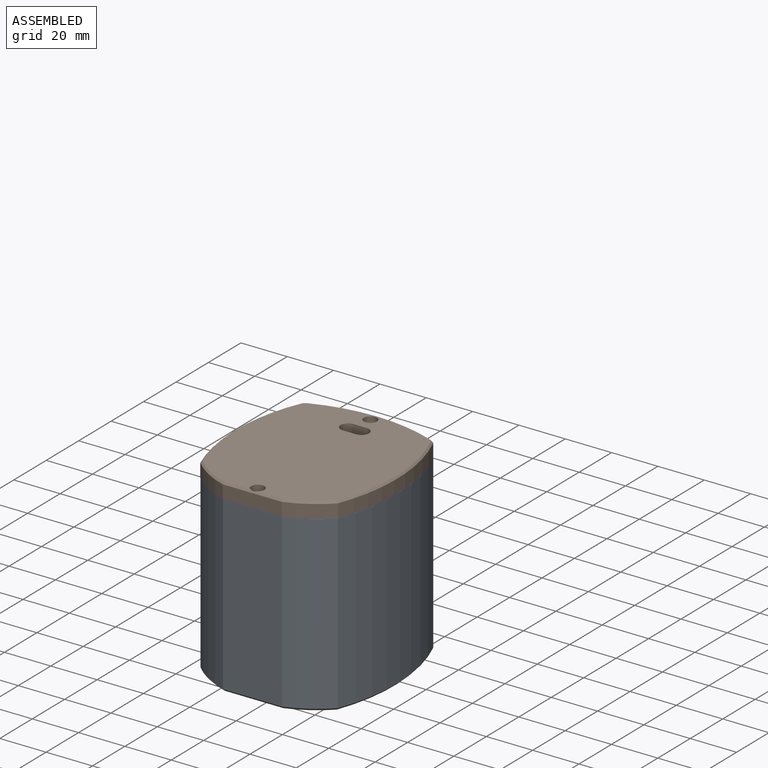
[diagram: assembled view]
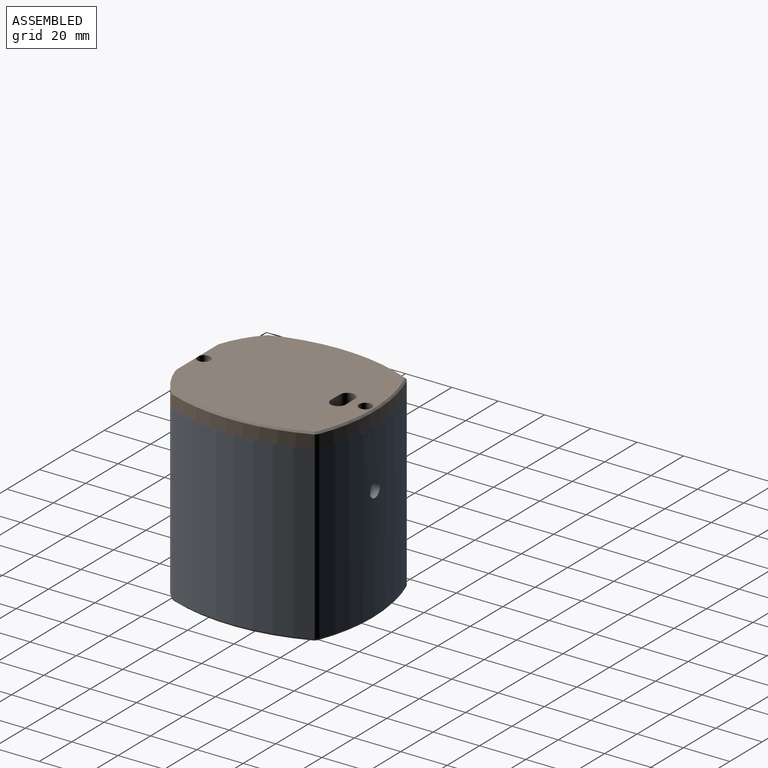
[diagram: assembled view, second angle]
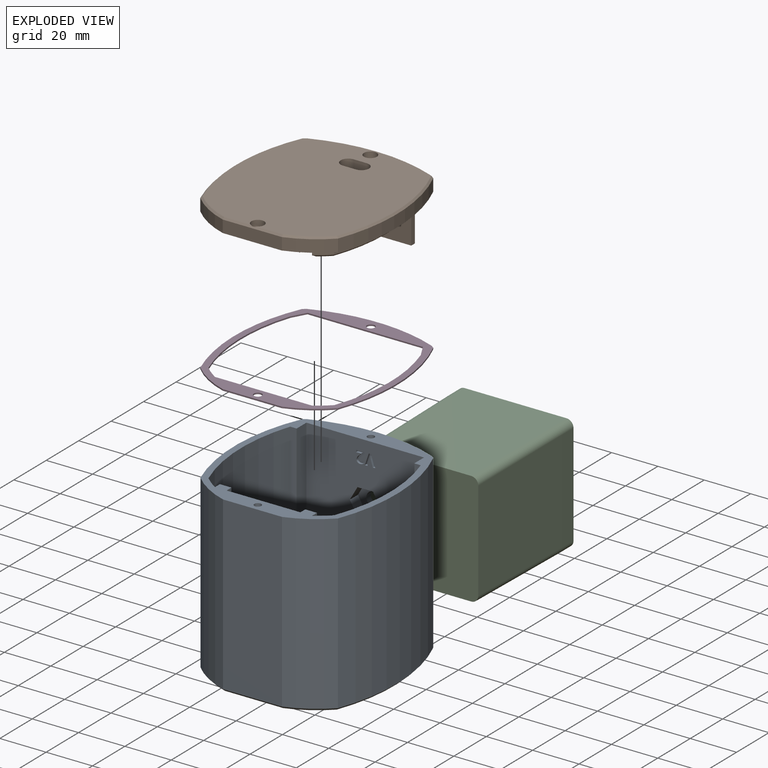
[diagram: exploded view]
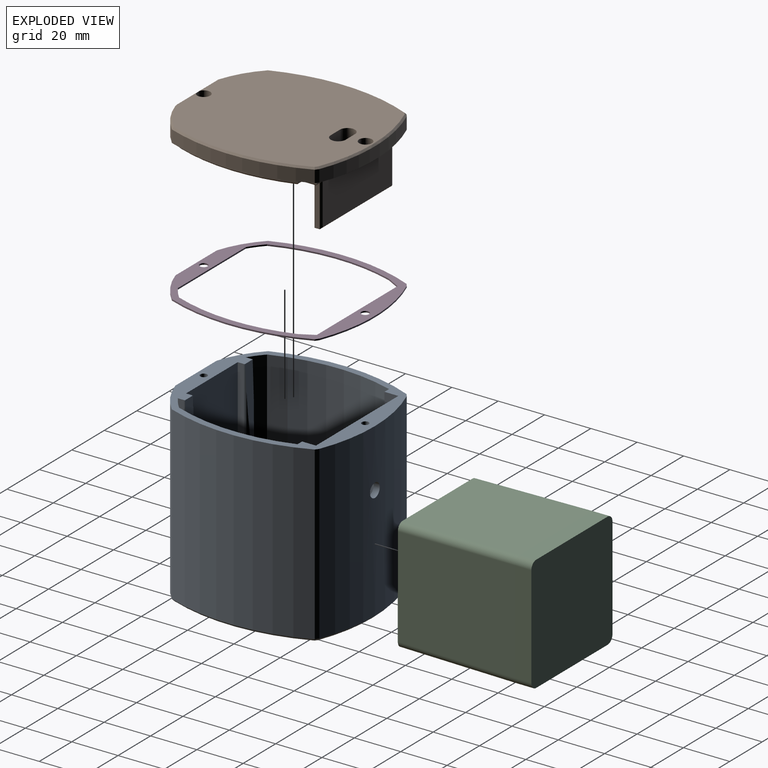
[diagram: exploded view, second angle]
ASSEMBLY  parts=4 mates=4
PART A: 92 faces, bbox 70.1x77.2x75 mm
  f0: plane 71x50.78mm, normal (0,-1,0), area 3472.3mm2, adj f7,f19,f22,f24,f49,f50,f51,f52
  f1: cylinder r=3mm len=6mm, axis (0,-1,0), area 50.6mm2, adj f13,f55
  f2: plane 71x31.88mm, normal (0,1,0), area 2263.2mm2, adj f7,f24,f27,f30
  f3: cylinder r=14mm len=28mm, axis (0,0,-1), area 175.9mm2, adj f4,f5
  f4: plane 32x32mm, normal (0,0,1), area 188.5mm2, adj f3,f6
  f5: plane 75.23x68.06mm, normal (0,0,-1), area 3864.1mm2, adj f3,f41,f42,f43,f44,f45,f46,f47
  f6: cylinder r=16mm len=32mm, axis (0,0,-1), area 201.1mm2, adj f4,f7
  f7: plane 64.34x62.7mm, normal (0,0,1), area 2874.9mm2, adj f0,f2,f6,f8,f9,f10,f11,f19
  f8: cylinder r=77mm len=71mm, axis (0,0,-1), area 3757.3mm2, adj f7,f9,f20,f24
  f9: cylinder r=39.25mm len=71mm, axis (0,0,-1), area 557.8mm2, adj f7,f8,f24,f29
  f10: cylinder r=39.25mm len=71mm, axis (0,0,-1), area 557.8mm2, adj f7,f11,f24,f25
  f11: cylinder r=77mm len=71mm, axis (0,0,-1), area 3757.3mm2, adj f7,f10,f21,f24
  f12: plane 74x1.4mm, normal (0.59,0.81,0), area 128.4mm2, adj f13,f23,f24,f44
  f13: cylinder r=72.75mm len=74mm, axis (0,0,-1), area 4050.9mm2, adj f1,f12,f14,f24,f46
  f14: plane 74x1.4mm, normal (-0.59,0.81,0), area 128.4mm2, adj f13,f15,f24,f48
  f15: cylinder r=79.75mm len=74mm, axis (0,0,-1), area 4609.1mm2, adj f14,f16,f24,f47
  f16: cylinder r=42mm len=74mm, axis (0,0,-1), area 1485.5mm2, adj f15,f17,f24,f45
  f17: plane 74x25.5mm, normal (0,-1,0), area 1886.7mm2, adj f16,f18,f24,f43
  f18: cylinder r=42mm len=74mm, axis (0,0,-1), area 1478.7mm2, adj f17,f23,f24,f41
  f19: plane 71x6mm, normal (-1,0,0), area 426mm2, adj f0,f7,f20,f24
  f20: plane 71x2.79mm, normal (0,-1,0), area 198.2mm2, adj f7,f8,f19,f24
  f21: plane 71x2.79mm, normal (0,-1,0), area 198.2mm2, adj f7,f11,f22,f24
  f22: plane 71x6mm, normal (1,0,0), area 426mm2, adj f0,f7,f21,f24
  f23: cylinder r=79.75mm len=74mm, axis (0,0,-1), area 4614.3mm2, adj f12,f18,f24,f42
  f24: plane 77.23x70.06mm, normal (0,0,1), area 1020.7mm2, adj f0,f2,f8,f9,f10,f11,f12,f13
  f25: plane 71x2.5mm, normal (-1,0,0), area 177.5mm2, adj f7,f10,f24,f33
  f26: plane 41x1mm, normal (0,1,0), area 41mm2, adj f7,f33,f34,f36
  f27: plane 71x2.5mm, normal (1,0,0), area 177.5mm2, adj f2,f7,f24,f34
  f28: plane 41x1mm, normal (0,1,0), area 41mm2, adj f7,f31,f32,f35
  f29: plane 71x2.5mm, normal (1,0,0), area 177.5mm2, adj f7,f9,f24,f31
  f30: plane 71x2.5mm, normal (-1,0,0), area 177.5mm2, adj f2,f7,f24,f32
  f31: cylinder r=2mm len=71mm, axis (0,0,-1), area 172mm2, adj f7,f24,f28,f29,f35
  f32: cylinder r=2mm len=71mm, axis (0,0,1), area 172mm2, adj f7,f24,f28,f30,f35
  f33: cylinder r=2mm len=71mm, axis (0,0,-1), area 172mm2, adj f7,f24,f25,f26,f36
  f34: cylinder r=2mm len=71mm, axis (0,0,1), area 172mm2, adj f7,f24,f26,f27,f36
  f35: plane 30x4.87mm, normal (0,1,0.05), area 116.2mm2, adj f24,f28,f31,f32
  f36: plane 30x4.87mm, normal (0,1,0.05), area 116.2mm2, adj f24,f26,f33,f34
  f37: cylinder r=1.5mm len=10mm, axis (0,0,-1), area 94.2mm2, adj f24,f38
  f38: plane 3x3mm, normal (0,0,1), area 7.1mm2, adj f37
  f39: cylinder r=1.5mm len=10mm, axis (0,0,-1), area 94.2mm2, adj f24,f40
  f40: plane 3x3mm, normal (0,0,1), area 7.1mm2, adj f39
  f41: cone r=42mm half-angle=45deg, axis (0,0,1), area 27.7mm2, adj f5,f18,f42,f43
  f42: cone r=79.75mm half-angle=45deg, axis (0,0,1), area 87.3mm2, adj f5,f23,f41,f44
  f43: plane 25.5x1mm, normal (0,-0.71,-0.71), area 35.8mm2, adj f5,f17,f41,f45
  f44: plane 1.89x1.68mm, normal (0.42,0.57,-0.71), area 2.2mm2, adj f5,f12,f42,f46
  f45: cone r=42mm half-angle=45deg, axis (0,0,1), area 27.8mm2, adj f5,f16,f43,f47
  f46: cone r=72.75mm half-angle=45deg, axis (0,0,1), area 77.2mm2, adj f5,f13,f44,f48
  f47: cone r=78.75mm half-angle=45deg, axis (0,0,1), area 87.2mm2, adj f5,f15,f45,f48
  f48: plane 1.89x1.67mm, normal (-0.42,0.57,-0.71), area 2.2mm2, adj f5,f14,f46,f47
  f49: plane 5.75x5mm, normal (-0.87,0,-0.5), area 33.2mm2, adj f0,f50,f54,f55
  f50: plane 6.64x5mm, normal (0,0,-1), area 33.2mm2, adj f0,f49,f51,f55
  f51: plane 5.75x5mm, normal (0.87,0,-0.5), area 33.2mm2, adj f0,f50,f52,f55
  f52: plane 5.75x5mm, normal (0.87,0,0.5), area 33.2mm2, adj f0,f51,f53,f55
  f53: plane 6.64x5mm, normal (0,0,1), area 33.2mm2, adj f0,f52,f54,f55
  f54: plane 5.75x5mm, normal (-0.87,0,0.5), area 33.2mm2, adj f0,f49,f53,f55
  f55: plane 13.28x11.5mm, normal (0,-1,0), area 86.3mm2, adj f1,f49,f50,f51,f52,f53,f54
  f56: plane 1.06x1mm, normal (0,0,1), area 1.1mm2, adj f0,f57,f65,f66
  f57: plane 2.95x1mm, normal (-0.95,0,0.3), area 3.1mm2, adj f0,f56,f58,f66
  f58: extruded ~1.09x1mm, area 1.1mm2, adj f0,f57,f59,f66
  f59: extruded ~1x0.48mm, area 0.5mm2, adj f0,f58,f60,f66
  f60: extruded ~1x0.61mm, area 0.6mm2, adj f0,f59,f61,f66
  f61: plane 2.95x1mm, normal (0.95,0,0.3), area 3.1mm2, adj f0,f60,f62,f66
  f62: plane 1.06x1mm, normal (0,0,1), area 1.1mm2, adj f0,f61,f63,f66
  f63: plane 4.96x1.68mm, normal (-0.95,0,-0.32), area 5.2mm2, adj f0,f62,f64,f66
  f64: plane 1.15x1mm, normal (0,0,-1), area 1.1mm2, adj f0,f63,f65,f66
  f65: plane 4.96x1.69mm, normal (0.95,0,-0.32), area 5.2mm2, adj f0,f56,f64,f66
  f66: plane 4.96x4.51mm, normal (0,-1,0), area 9.5mm2, adj f56,f57,f58,f59,f60,f61,f62,f63
  f67: plane 3.47x1mm, normal (0,0,-1), area 3.5mm2, adj f0,f68,f90,f91
  f68: plane 1x0.88mm, normal (1,0,0), area 0.9mm2, adj f0,f67,f69,f91
  f69: plane 2.16x1mm, normal (0,0,1), area 2.2mm2, adj f0,f68,f70,f91
  f70: plane 1x0.05mm, normal (1,0,0), area 0mm2, adj f0,f69,f71,f91
  f71: plane 1x0.64mm, normal (0.69,0,-0.73), area 0.9mm2, adj f0,f70,f72,f91
  f72: extruded ~1x0.9mm, area 1.3mm2, adj f0,f71,f73,f91
  f73: extruded ~1x0.62mm, area 0.7mm2, adj f0,f72,f74,f91
  f74: extruded ~1x0.64mm, area 0.7mm2, adj f0,f73,f75,f91
  f75: extruded ~1x0.7mm, area 0.7mm2, adj f0,f74,f76,f91
  f76: extruded ~1x0.55mm, area 0.7mm2, adj f0,f75,f77,f91
  f77: extruded ~1x0.82mm, area 0.8mm2, adj f0,f76,f78,f91
  f78: extruded ~1x0.64mm, area 0.6mm2, adj f0,f77,f79,f91
  f79: extruded ~1x0.53mm, area 0.6mm2, adj f0,f78,f80,f91
  f80: extruded ~1x0.61mm, area 0.8mm2, adj f0,f79,f81,f91
  f81: plane 1x0.68mm, normal (-0.76,0,-0.65), area 0.9mm2, adj f0,f80,f82,f91
  f82: extruded ~1x0.57mm, area 0.7mm2, adj f0,f81,f83,f91
  f83: extruded ~1x0.56mm, area 0.6mm2, adj f0,f82,f84,f91
  f84: extruded ~1x0.44mm, area 0.5mm2, adj f0,f83,f85,f91
  f85: extruded ~1x0.44mm, area 0.5mm2, adj f0,f84,f86,f91
  f86: extruded ~1x0.39mm, area 0.4mm2, adj f0,f85,f87,f91
  f87: extruded ~1x0.41mm, area 0.5mm2, adj f0,f86,f88,f91
  f88: extruded ~1x0.79mm, area 1.1mm2, adj f0,f87,f89,f91
  f89: plane 1.26x1.24mm, normal (-0.71,0,0.7), area 1.8mm2, adj f0,f88,f90,f91
  f90: plane 1x0.73mm, normal (-1,0,0), area 0.7mm2, adj f0,f67,f89,f91
  f91: plane 5.03x3.48mm, normal (0,-1,0), area 9.2mm2, adj f67,f68,f69,f70,f71,f72,f73,f74
PART B: 132 faces, bbox 70.1x77.2x27 mm
  f0: plane 58.13x56.7mm, normal (0,0,1), area 2783.1mm2, adj f14,f17,f18,f19,f20,f21,f22,f23
  f1: plane 17.2x9mm, normal (0,0,1), area 68.3mm2, adj f14,f15,f16,f28,f29,f43,f45
  f2: plane 5.25x1.4mm, normal (0.59,0.81,0), area 9.1mm2, adj f3,f9,f11,f59
  f3: cylinder r=72.75mm len=53.82mm, axis (0,0,-1), area 289.4mm2, adj f2,f4,f11,f61
  f4: plane 5.25x1.4mm, normal (-0.59,0.81,0), area 9.1mm2, adj f3,f5,f11,f63
  f5: cylinder r=79.75mm len=60.7mm, axis (0,0,-1), area 327mm2, adj f4,f6,f11,f62
  f6: cylinder r=42mm len=16.98mm, axis (0,0,-1), area 105.4mm2, adj f5,f7,f11,f60
  f7: plane 25.5x5.25mm, normal (0,-1,0), area 133.9mm2, adj f6,f8,f11,f58
  f8: cylinder r=42mm len=16.91mm, axis (0,0,-1), area 104.9mm2, adj f7,f9,f11,f56
  f9: cylinder r=79.75mm len=60.76mm, axis (0,0,-1), area 327.4mm2, adj f2,f8,f11,f57
  f10: plane 75.73x68.56mm, normal (0,0,-1), area 4421.6mm2, adj f14,f15,f16,f45,f52,f54,f56,f57
  f11: plane 77.23x70.06mm, normal (0,0,1), area 1049.9mm2, adj f2,f3,f4,f5,f6,f7,f8,f9
  f12: plane 5x2.25mm, normal (0,-1,0), area 11.3mm2, adj f11,f35,f36,f70
  f13: plane 5x2.25mm, normal (0,-1,0), area 11.3mm2, adj f11,f38,f39,f74
  f14: plane 44.38x27mm, normal (0,-1,0), area 1007.3mm2, adj f0,f1,f10,f15,f28,f43,f45,f46
  f15: cylinder r=3.25mm len=9mm, axis (0,0,-1), area 91.9mm2, adj f1,f10,f14,f16
  f16: plane 9x5.7mm, normal (0,1,0), area 51.3mm2, adj f1,f10,f15,f45
  f17: plane 6x3mm, normal (-1,0,0), area 18mm2, adj f0,f46,f84,f85
  f18: plane 6x0.98mm, normal (0,-1,0), area 5.9mm2, adj f0,f46,f85,f86
  f19: cylinder r=74mm len=43.26mm, axis (0,0,-1), area 263.5mm2, adj f0,f46,f86,f87
  f20: plane 9.67x6mm, normal (0,1,0), area 58mm2, adj f0,f46,f87,f88
  f21: plane 6x2.32mm, normal (-1,0,0), area 13.9mm2, adj f0,f46,f88,f89
  f22: plane 22.88x6mm, normal (0,1,0), area 137.3mm2, adj f0,f46,f89,f90
  f23: plane 6x1.76mm, normal (1,0,0), area 10.5mm2, adj f0,f46,f90,f91
  f24: plane 9.46x6mm, normal (0,1,0), area 56.8mm2, adj f0,f46,f91,f92
  f25: cylinder r=74mm len=43.83mm, axis (0,0,-1), area 267mm2, adj f0,f46,f92,f93
  f26: plane 6x1.01mm, normal (0,-1,0), area 6mm2, adj f0,f46,f93,f94
  f27: plane 6x3mm, normal (1,0,0), area 18mm2, adj f0,f46,f94,f95
  f28: cylinder r=5.75mm len=9mm, axis (0,0,-1), area 74.9mm2, adj f0,f1,f14,f29
  f29: plane 6x5.7mm, normal (0,-1,0), area 34.2mm2, adj f0,f1,f28,f43
  f30: plane 50.38x20.25mm, normal (0,1,0), area 885.2mm2, adj f11,f31,f44,f64,f76,f81,f82,f83
  f31: plane 6x2.25mm, normal (-1,0,0), area 13.5mm2, adj f11,f30,f32,f65
  f32: plane 2.79x2.25mm, normal (0,1,0), area 6.3mm2, adj f11,f31,f33,f66
  f33: cylinder r=77mm len=51.87mm, axis (0,0,-1), area 119.1mm2, adj f11,f32,f34,f67
  f34: cylinder r=39.25mm len=6.18mm, axis (0,0,-1), area 17.7mm2, adj f11,f33,f35,f68
  f35: plane 4.76x2.25mm, normal (1,0,0), area 10.7mm2, adj f11,f12,f34,f69
  f36: plane 4.76x2.25mm, normal (-1,0,0), area 10.7mm2, adj f11,f12,f37,f71
  f37: plane 31.88x2.25mm, normal (0,-1,0), area 71.7mm2, adj f11,f36,f38,f72
  f38: plane 5.32x2.25mm, normal (1,0,0), area 12mm2, adj f11,f13,f37,f73
  f39: plane 5.32x2.25mm, normal (-1,0,0), area 12mm2, adj f11,f13,f40,f75
  f40: cylinder r=39.25mm len=6.18mm, axis (0,0,-1), area 17.7mm2, adj f11,f39,f41,f77
  f41: cylinder r=77mm len=51.87mm, axis (0,0,-1), area 119.1mm2, adj f11,f40,f42,f79
  f42: plane 2.79x2.25mm, normal (0,1,0), area 6.3mm2, adj f11,f41,f44,f80
  f43: cylinder r=5.75mm len=9mm, axis (0,0,-1), area 74.9mm2, adj f0,f1,f14,f29
  f44: plane 6x2.25mm, normal (1,0,0), area 13.5mm2, adj f11,f30,f42,f78
  f45: cylinder r=3.25mm len=9mm, axis (0,0,-1), area 91.9mm2, adj f1,f10,f14,f16
  f46: plane 62.63x61.2mm, normal (0,0,1), area 431.3mm2, adj f14,f17,f18,f19,f20,f21,f22,f23
  f47: plane 18x2.25mm, normal (-1,0,0), area 40.5mm2, adj f14,f46,f49,f81
  f48: plane 18x2.25mm, normal (1,0,0), area 40.5mm2, adj f14,f46,f49,f83
  f49: plane 44.38x2.25mm, normal (0,0,1), area 99.9mm2, adj f14,f47,f48,f82
  f50: cylinder r=1.7mm len=3.4mm, axis (0,0,-1), area 32mm2, adj f11,f55
  f51: cylinder r=1.7mm len=3.4mm, axis (0,0,-1), area 32mm2, adj f11,f53
  f52: cylinder r=2.8mm len=5.6mm, axis (0,0,-1), area 52.8mm2, adj f10,f53
  f53: plane 5.6x5.6mm, normal (0,0,-1), area 15.6mm2, adj f51,f52
  f54: cylinder r=2.8mm len=5.6mm, axis (0,0,-1), area 52.4mm2, adj f10,f55,f58
  f55: plane 5.6x5.6mm, normal (0,0,-1), area 15.6mm2, adj f50,f54
  f56: cone r=42mm half-angle=45deg, axis (0,0,1), area 20.9mm2, adj f8,f10,f57,f58
  f57: cone r=79.75mm half-angle=45deg, axis (0,0,1), area 65.6mm2, adj f9,f10,f56,f59
  f58: plane 25.5x0.75mm, normal (0,-0.71,-0.71), area 26.4mm2, adj f7,f10,f54,f56,f60
  f59: plane 1.77x1.51mm, normal (0.42,0.57,-0.71), area 1.7mm2, adj f2,f10,f57,f61
  f60: cone r=42mm half-angle=45deg, axis (0,0,1), area 21mm2, adj f6,f10,f58,f62
  f61: cone r=72.75mm half-angle=45deg, axis (0,0,1), area 58.1mm2, adj f3,f10,f59,f63
  f62: cone r=79mm half-angle=45deg, axis (0,0,1), area 65.6mm2, adj f5,f10,f60,f63
  f63: plane 1.77x1.51mm, normal (-0.42,0.57,-0.71), area 1.7mm2, adj f4,f10,f61,f62
  f64: plane 3.75x0.75mm, normal (0,0.71,0.71), area 3.2mm2, adj f30,f46,f65,f81
  f65: plane 6.75x0.75mm, normal (-0.71,0,0.71), area 6.4mm2, adj f31,f46,f64,f66
  f66: plane 3.54x0.75mm, normal (0,0.71,0.71), area 3.1mm2, adj f32,f46,f65,f67
  f67: cone r=77mm half-angle=45deg, axis (0,0,-1), area 55.5mm2, adj f33,f46,f66,f68
  f68: cone r=38.5mm half-angle=45deg, axis (0,0,-1), area 7.4mm2, adj f34,f46,f67,f69
  f69: plane 5.52x0.76mm, normal (0.71,0,0.71), area 4.7mm2, adj f35,f46,f68,f70
  f70: plane 6.5x0.75mm, normal (0,-0.71,0.71), area 6.1mm2, adj f12,f46,f69,f71
  f71: plane 5.51x0.75mm, normal (-0.71,0,0.71), area 5mm2, adj f36,f46,f70,f72
  f72: plane 31.88x0.75mm, normal (0,-0.71,0.71), area 33mm2, adj f37,f46,f71,f73
  f73: plane 6.07x0.75mm, normal (0.71,0,0.71), area 5.6mm2, adj f38,f46,f72,f74
  f74: plane 6.5x0.75mm, normal (0,-0.71,0.71), area 6.1mm2, adj f13,f46,f73,f75
  f75: plane 6.08x0.76mm, normal (-0.71,0,0.71), area 5.3mm2, adj f39,f46,f74,f77
  f76: plane 3.75x0.75mm, normal (0,0.71,0.71), area 3.2mm2, adj f30,f46,f78,f83
  f77: cone r=38.5mm half-angle=45deg, axis (0,0,-1), area 7.4mm2, adj f40,f46,f75,f79
  f78: plane 6.75x0.75mm, normal (0.71,0,0.71), area 6.4mm2, adj f44,f46,f76,f80
  f79: cone r=76.25mm half-angle=45deg, axis (0,0,-1), area 55.5mm2, adj f41,f46,f77,f80
  f80: plane 3.54x0.75mm, normal (0,0.71,0.71), area 3.1mm2, adj f42,f46,f78,f79
  f81: plane 18.75x0.75mm, normal (-0.71,0.71,0), area 19.1mm2, adj f30,f47,f64,f82
  f82: plane 44.38x0.75mm, normal (0,0.71,0.71), area 46.3mm2, adj f30,f49,f81,f83
  f83: plane 18.75x0.75mm, normal (0.71,0.71,0), area 19.1mm2, adj f30,f48,f76,f82
  f84: cylinder r=1.5mm len=6mm, axis (0,0,1), area 14.1mm2, adj f0,f14,f17,f46
  f85: cylinder r=1.5mm len=6mm, axis (0,0,-1), area 14.1mm2, adj f0,f17,f18,f46
  f86: cylinder r=1.5mm len=6mm, axis (0,0,-1), area 11.6mm2, adj f0,f18,f19,f46
  f87: cylinder r=1.5mm len=6mm, axis (0,0,-1), area 11.3mm2, adj f0,f19,f20,f46
  f88: cylinder r=1.5mm len=6mm, axis (0,0,1), area 14.1mm2, adj f0,f20,f21,f46
  f89: cylinder r=1.5mm len=6mm, axis (0,0,1), area 14.1mm2, adj f0,f21,f22,f46
  f90: cylinder r=1.5mm len=6mm, axis (0,0,-1), area 14.1mm2, adj f0,f22,f23,f46
  f91: cylinder r=1.5mm len=6mm, axis (0,0,1), area 14.1mm2, adj f0,f23,f24,f46
  f92: cylinder r=1.5mm len=6mm, axis (0,0,-1), area 11.3mm2, adj f0,f24,f25,f46
  f93: cylinder r=1.5mm len=6mm, axis (0,0,-1), area 11.6mm2, adj f0,f25,f26,f46
  f94: cylinder r=1.5mm len=6mm, axis (0,0,-1), area 14.1mm2, adj f0,f26,f27,f46
  f95: cylinder r=1.5mm len=6mm, axis (0,0,-1), area 14.1mm2, adj f0,f14,f27,f46
  f96: plane 3.47x1mm, normal (0,-1,0), area 3.5mm2, adj f0,f97,f119,f120
  f97: plane 1x0.88mm, normal (1,0,0), area 0.9mm2, adj f0,f96,f98,f120
  f98: plane 2.16x1mm, normal (0,1,0), area 2.2mm2, adj f0,f97,f99,f120
  f99: plane 1x0.05mm, normal (1,0,0), area 0mm2, adj f0,f98,f100,f120
  f100: plane 1x0.64mm, normal (0.69,-0.73,0), area 0.9mm2, adj f0,f99,f101,f120
  f101: extruded ~1x0.9mm, area 1.3mm2, adj f0,f100,f102,f120
  f102: extruded ~1x0.62mm, area 0.7mm2, adj f0,f101,f103,f120
  f103: extruded ~1x0.64mm, area 0.7mm2, adj f0,f102,f104,f120
  f104: extruded ~1x0.7mm, area 0.7mm2, adj f0,f103,f105,f120
  f105: extruded ~1x0.55mm, area 0.7mm2, adj f0,f104,f106,f120
  f106: extruded ~1x0.82mm, area 0.8mm2, adj f0,f105,f107,f120
  f107: extruded ~1x0.64mm, area 0.6mm2, adj f0,f106,f108,f120
  f108: extruded ~1x0.53mm, area 0.6mm2, adj f0,f107,f109,f120
  f109: extruded ~1x0.61mm, area 0.8mm2, adj f0,f108,f110,f120
  f110: plane 1x0.68mm, normal (-0.76,-0.65,0), area 0.9mm2, adj f0,f109,f111,f120
  f111: extruded ~1x0.57mm, area 0.7mm2, adj f0,f110,f112,f120
  f112: extruded ~1x0.56mm, area 0.6mm2, adj f0,f111,f113,f120
  f113: extruded ~1x0.44mm, area 0.5mm2, adj f0,f112,f114,f120
  f114: extruded ~1x0.44mm, area 0.5mm2, adj f0,f113,f115,f120
  f115: extruded ~1x0.39mm, area 0.4mm2, adj f0,f114,f116,f120
  f116: extruded ~1x0.41mm, area 0.5mm2, adj f0,f115,f117,f120
  f117: extruded ~1x0.79mm, area 1.1mm2, adj f0,f116,f118,f120
  f118: plane 1.26x1.24mm, normal (-0.71,0.7,0), area 1.8mm2, adj f0,f117,f119,f120
  f119: plane 1x0.73mm, normal (-1,0,0), area 0.7mm2, adj f0,f96,f118,f120
  f120: plane 5.03x3.48mm, normal (0,0,1), area 9.2mm2, adj f96,f97,f98,f99,f100,f101,f102,f103
  f121: plane 1.06x1mm, normal (0,1,0), area 1.1mm2, adj f0,f122,f130,f131
  f122: plane 2.95x1mm, normal (-0.95,0.3,0), area 3.1mm2, adj f0,f121,f123,f131
  f123: extruded ~1.09x1mm, area 1.1mm2, adj f0,f122,f124,f131
  f124: extruded ~1x0.48mm, area 0.5mm2, adj f0,f123,f125,f131
  f125: extruded ~1x0.61mm, area 0.6mm2, adj f0,f124,f126,f131
  f126: plane 2.95x1mm, normal (0.95,0.3,0), area 3.1mm2, adj f0,f125,f127,f131
  f127: plane 1.06x1mm, normal (0,1,0), area 1.1mm2, adj f0,f126,f128,f131
  f128: plane 4.96x1.68mm, normal (-0.95,-0.32,0), area 5.2mm2, adj f0,f127,f129,f131
  f129: plane 1.15x1mm, normal (0,-1,0), area 1.1mm2, adj f0,f128,f130,f131
  f130: plane 4.96x1.69mm, normal (0.95,-0.32,0), area 5.2mm2, adj f0,f121,f129,f131
  f131: plane 4.96x4.51mm, normal (0,0,1), area 9.5mm2, adj f121,f122,f123,f124,f125,f126,f127,f128
PART C: 18 faces, bbox 50x50x58 mm
  f0: plane 44x7mm, normal (0,-1,0), area 308mm2, adj f5,f6,f11,f13
  f1: plane 44x7mm, normal (1,0,0), area 308mm2, adj f5,f7,f13,f15
  f2: plane 44x7mm, normal (0,1,0), area 308mm2, adj f5,f9,f15,f17
  f3: plane 44x7mm, normal (-1,0,0), area 308mm2, adj f5,f8,f11,f17
  f4: plane 49x49mm, normal (0,0,1), area 2393.3mm2, adj f6,f7,f8,f9,f10,f12,f14,f16
  f5: plane 50x50mm, normal (0,0,-1), area 2492.3mm2, adj f0,f1,f2,f3,f11,f13,f15,f17
  f6: plane 51x44mm, normal (0,-1,0.01), area 2218.6mm2, adj f0,f4,f10,f11,f12,f13
  f7: plane 51x44mm, normal (1,0,0.01), area 2218.6mm2, adj f1,f4,f12,f13,f14,f15
  f8: plane 51x44mm, normal (-1,0,0.01), area 2218.6mm2, adj f3,f4,f10,f11,f16,f17
  f9: plane 51x44mm, normal (0,1,0.01), area 2218.6mm2, adj f2,f4,f14,f15,f16,f17
  f10: cylinder r=3mm len=51.01mm, axis (0.01,0.01,1), area 240.3mm2, adj f4,f6,f8,f11
  f11: cylinder r=3mm len=7mm, axis (0,0,-1), area 33mm2, adj f0,f3,f5,f6,f8,f10
  f12: cylinder r=3mm len=51.01mm, axis (-0.01,0.01,1), area 240.3mm2, adj f4,f6,f7,f13
  f13: cylinder r=3mm len=7mm, axis (0,0,1), area 33mm2, adj f0,f1,f5,f6,f7,f12
  f14: cylinder r=3mm len=51.01mm, axis (0.01,0.01,-1), area 240.3mm2, adj f4,f7,f9,f15
  f15: cylinder r=3mm len=7mm, axis (0,0,-1), area 33mm2, adj f1,f2,f5,f7,f9,f14
  f16: cylinder r=3mm len=51.01mm, axis (-0.01,0.01,-1), area 240.3mm2, adj f4,f8,f9,f17
  f17: cylinder r=3mm len=7mm, axis (0,0,1), area 33mm2, adj f2,f3,f5,f8,f9,f16
PART D: 20 faces, bbox 70.1x77.2x0.6 mm
  f0: plane 1.4x1.03mm, normal (0.59,0.81,0), area 1mm2, adj f1,f17,f18,f19
  f1: cylinder r=72.75mm len=53.82mm, axis (0,0,-1), area 33.1mm2, adj f0,f2,f18,f19
  f2: plane 1.4x1.03mm, normal (-0.59,0.81,0), area 1mm2, adj f1,f3,f18,f19
  f3: cylinder r=79.75mm len=60.7mm, axis (0,0,-1), area 37.4mm2, adj f2,f4,f18,f19
  f4: cylinder r=42mm len=16.98mm, axis (0,0,-1), area 12mm2, adj f3,f5,f18,f19
  f5: plane 25.5x0.6mm, normal (0,-1,0), area 15.3mm2, adj f4,f6,f18,f19
  f6: cylinder r=42mm len=16.91mm, axis (0,0,-1), area 12mm2, adj f5,f17,f18,f19
  f7: plane 6x3.29mm, normal (0.88,-0.48,0), area 4.1mm2, adj f8,f14,f18,f19
  f8: plane 49.78x0.6mm, normal (0,-1,0), area 29.9mm2, adj f7,f9,f18,f19
  f9: plane 6x3.29mm, normal (-0.88,-0.48,0), area 4.1mm2, adj f8,f10,f18,f19
  f10: cylinder r=77mm len=51.87mm, axis (0,0,-1), area 31.8mm2, adj f9,f11,f18,f19
  f11: cylinder r=39.25mm len=6.18mm, axis (0,0,-1), area 4.7mm2, adj f10,f12,f18,f19
  f12: plane 41.88x0.6mm, normal (0,1,0), area 25.1mm2, adj f11,f13,f18,f19
  f13: cylinder r=39.25mm len=6.18mm, axis (0,0,-1), area 4.7mm2, adj f12,f14,f18,f19
  f14: cylinder r=77mm len=51.87mm, axis (0,0,-1), area 31.8mm2, adj f7,f13,f18,f19
  f15: cylinder r=1.7mm len=3.4mm, axis (0,0,-1), area 6.4mm2, adj f18,f19
  f16: cylinder r=1.7mm len=3.4mm, axis (0,0,-1), area 6.4mm2, adj f18,f19
  f17: cylinder r=79.75mm len=60.76mm, axis (0,0,-1), area 37.4mm2, adj f0,f6,f18,f19
  f18: plane 77.23x70.06mm, normal (0,0,1), area 972.9mm2, adj f0,f1,f2,f3,f4,f5,f6,f7
  f19: plane 77.23x70.06mm, normal (0,0,-1), area 972.9mm2, adj f0,f1,f2,f3,f4,f5,f6,f7
PLACE A t=(57.37,-86.16,-96.21)mm fixed
PLACE B rot(axis=(0,-1,0),180deg) t=(57.37,-86.16,-14.61)mm
PLACE C rot(axis=(0,-0.71,0.71),180deg) t=(57.37,-56.65,-67.21)mm
PLACE D rot(axis=(0,-1,0),180deg) t=(57.37,-86.16,-20.61)mm
MATE slider A.f39 <-> D.f16  axis (0,0,1) through (57.37,-122.85,-21.21)mm
MATE parallel C.f5 <-> A.f0  axis (0,1,0) through (57.37,-56.65,-67.21)mm
MATE slider B.f50 <-> D.f16  axis (0,0,-1) through (57.37,-122.85,-20.61)mm
MATE parallel C.f5 <-> A.f0  axis (0,1,0) through (57.37,-56.65,-67.21)mm
